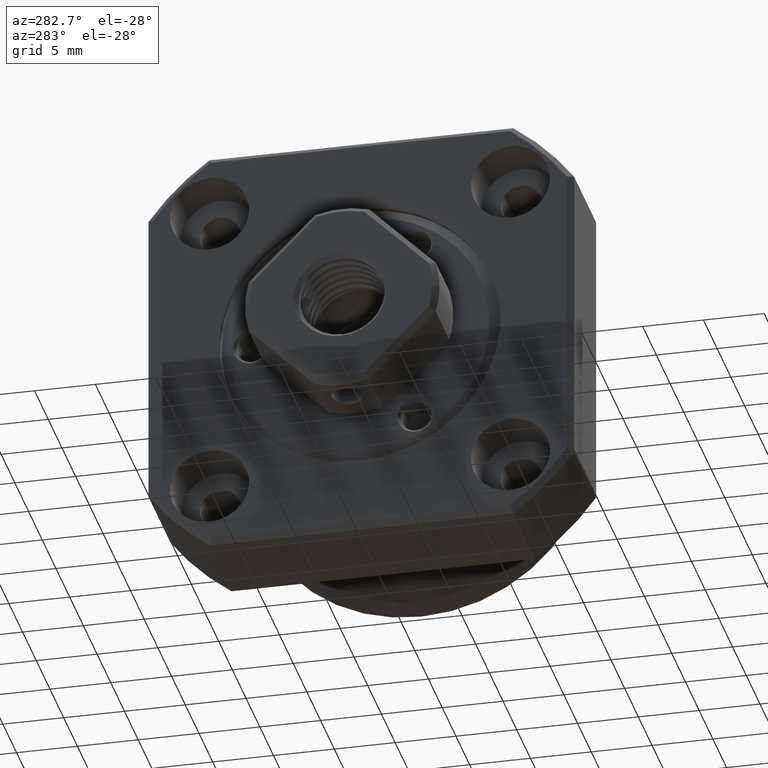
[diagram: clean part render]
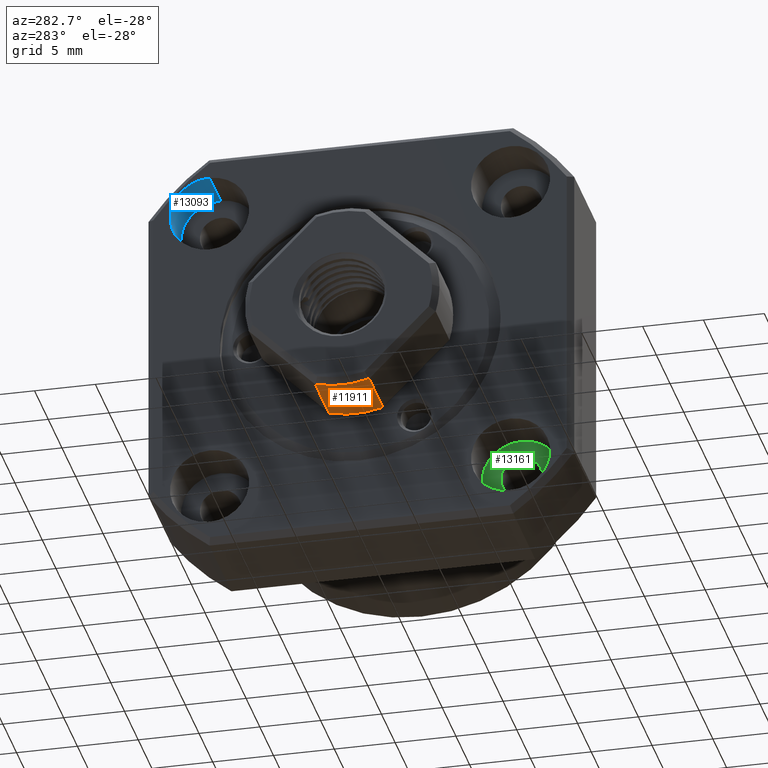
[diagram: same view with three faces highlighted in distinct colors, each labeled with its STEP entity id]
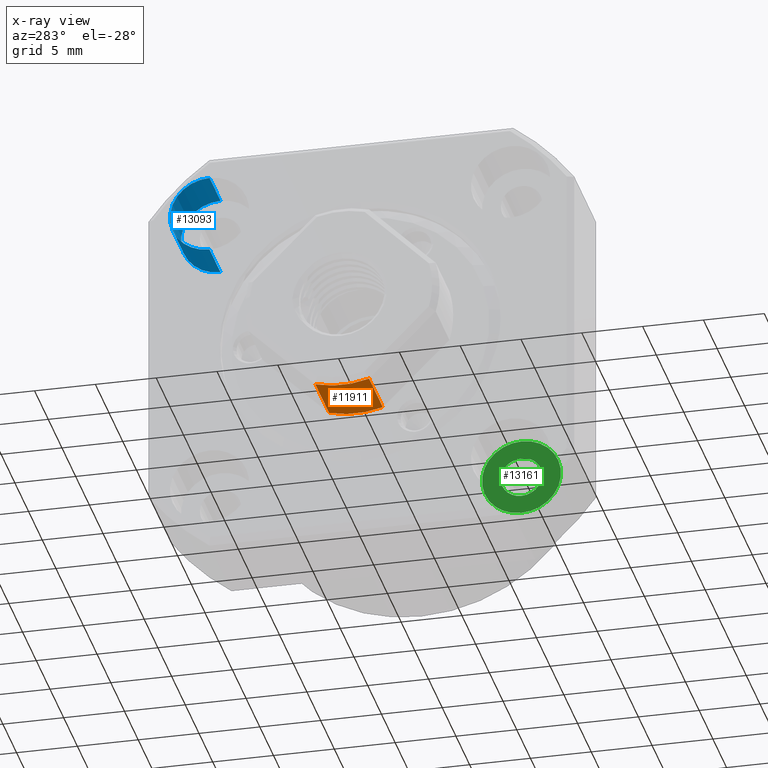
[diagram: x-ray of the same camera — body ghosted, the three highlighted faces saturated]
A machine part, auxiliary view with three faces highlighted in distinct colors.
The next image is the same camera in x-ray (body ghosted, the three faces saturated) — at least one of them is partly hidden behind the body in this view.
Their STEP definitions:

[orange] entity #11911 — the highlighted cylindrical surface (partial cylindrical patch) has radius 8 mm, axis along (1, 0, 0).
#11348 = EDGE_CURVE ( 'NONE', #11351, #11353, #37126, .T. ) ;
#11351 = VERTEX_POINT ( 'NONE', #37115 ) ;
#11353 = VERTEX_POINT ( 'NONE', #37106 ) ;
#11691 = EDGE_CURVE ( 'NONE', #11353, #11351, #38114, .T. ) ;
#11772 = EDGE_LOOP ( 'NONE', ( #11774, #11874, #11878, #11884 ) ) ;
#11774 = ORIENTED_EDGE ( 'NONE', *, *, #11777, .F. ) ;
#11777 = EDGE_CURVE ( 'NONE', #11779, #11780, #38370, .T. ) ;
#11779 = VERTEX_POINT ( 'NONE', #38364 ) ;
#11780 = VERTEX_POINT ( 'NONE', #38362 ) ;
#11874 = ORIENTED_EDGE ( 'NONE', *, *, #11875, .T. ) ;
#11875 = EDGE_CURVE ( 'NONE', #11779, #11876, #38572, .T. ) ;
#11876 = VERTEX_POINT ( 'NONE', #38567 ) ;
#11878 = ORIENTED_EDGE ( 'NONE', *, *, #11880, .F. ) ;
#11880 = EDGE_CURVE ( 'NONE', #11883, #11876, #38566, .T. ) ;
#11883 = VERTEX_POINT ( 'NONE', #38555 ) ;
#11884 = ORIENTED_EDGE ( 'NONE', *, *, #11885, .T. ) ;
#11885 = EDGE_CURVE ( 'NONE', #11883, #11780, #38557, .T. ) ;
#11911 = ADVANCED_FACE ( 'NONE', ( #38614, #38613 ), #38612, .T. ) ;
#11912 = EDGE_LOOP ( 'NONE', ( #11913, #11914 ) ) ;
#11913 = ORIENTED_EDGE ( 'NONE', *, *, #11691, .T. ) ;
#11914 = ORIENTED_EDGE ( 'NONE', *, *, #11348, .T. ) ;
#37081 = CARTESIAN_POINT ( 'NONE',  ( -3.461667801097382500, -0.8003058557343190000, -7.960778504280384900 ) ) ;
#37083 = CARTESIAN_POINT ( 'NONE',  ( -3.701090860489840900, -1.039407237230781700, -7.933102574158962900 ) ) ;
#37084 = CARTESIAN_POINT ( 'NONE',  ( -3.845367789046851400, -1.135965316673869500, -7.919212100649898100 ) ) ;
#37086 = CARTESIAN_POINT ( 'NONE',  ( -4.159824817562184600, -1.266191682786128600, -7.899436443076744800 ) ) ;
#37088 = CARTESIAN_POINT ( 'NONE',  ( -4.329016082523577500, -1.300106017611960300, -7.893650888819941300 ) ) ;
#37090 = CARTESIAN_POINT ( 'NONE',  ( -4.672592250346003300, -1.299893484939021100, -7.893685890597104100 ) ) ;
#37091 = CARTESIAN_POINT ( 'NONE',  ( -4.841432327052777000, -1.265906784306035200, -7.899485092780425400 ) ) ;
#37093 = CARTESIAN_POINT ( 'NONE',  ( -5.077700332516450900, -1.167705584014042900, -7.914389417287058100 ) ) ;
#37095 = CARTESIAN_POINT ( 'NONE',  ( -5.152259069562968600, -1.127715911799510100, -7.920260017787667200 ) ) ;
#37097 = CARTESIAN_POINT ( 'NONE',  ( -5.293176255057969300, -1.033468190108028700, -7.933108181988104400 ) ) ;
#37098 = CARTESIAN_POINT ( 'NONE',  ( -5.359946436668760600, -0.9786064420686287900, -7.940149318801784000 ) ) ;
#37100 = CARTESIAN_POINT ( 'NONE',  ( -5.539563308251745300, -0.7987627293050289000, -7.960938713215925900 ) ) ;
#37102 = CARTESIAN_POINT ( 'NONE',  ( -5.636186486837067000, -0.6540376964923748600, -7.974760977249912000 ) ) ;
#37104 = CARTESIAN_POINT ( 'NONE',  ( -5.765834693990137300, -0.3410975942382240000, -7.994262341448763500 ) ) ;
#37106 = CARTESIAN_POINT ( 'NONE',  ( -3.200000000000004200, -6.008997269984488000E-015, -7.999999999999992900 ) ) ;
#37115 = CARTESIAN_POINT ( 'NONE',  ( -5.799999999999985600, -6.392136178582352700E-015, -7.999999999999992900 ) ) ;
#37120 = CARTESIAN_POINT ( 'NONE',  ( -5.799999999999986500, -0.1697939913891517700, -7.999999999999992900 ) ) ;
#37121 = CARTESIAN_POINT ( 'NONE',  ( -5.799999999999985600, -6.392136178582352700E-015, -7.999999999999992900 ) ) ;
#37126 = B_SPLINE_CURVE_WITH_KNOTS ( 'NONE', 3,
 ( #37121, #37120, #37104, #37102, #37100, #37098, #37097, #37095, #37093, #37091, #37090, #37088, #37086, #37084, #37083, #37081, #37184, #37183, #37182, #37180 ),
 .UNSPECIFIED., .F., .F.,
 ( 4, 2, 2, 2, 2, 2, 2, 2, 2, 4 ),
 ( 0.004071145708490775600, 0.004579912519083637400, 0.005088679329676499200, 0.005343062734972930600, 0.005597446140269361100, 0.006106212950862222000, 0.006614979761455084700, 0.007123746572047946600, 0.007632513382640810200, 0.008141280193233672900 ),
 .UNSPECIFIED. ) ;
#37180 = CARTESIAN_POINT ( 'NONE',  ( -3.200000000000004200, -6.008997269984488000E-015, -7.999999999999992900 ) ) ;
#37182 = CARTESIAN_POINT ( 'NONE',  ( -3.200000000000005100, -0.1720524413163924700, -7.999999999999996400 ) ) ;
#37183 = CARTESIAN_POINT ( 'NONE',  ( -3.234676926419282500, -0.3429515518487777400, -7.994179833223617100 ) ) ;
#37184 = CARTESIAN_POINT ( 'NONE',  ( -3.364704594874876600, -0.6555628044306818200, -7.974632554687498300 ) ) ;
#38054 = CARTESIAN_POINT ( 'NONE',  ( -5.799999999999985600, -6.392136178582352700E-015, -7.999999999999992900 ) ) ;
#38055 = CARTESIAN_POINT ( 'NONE',  ( -5.799999999999982900, 0.08491808832884872900, -7.999999999999988500 ) ) ;
#38057 = CARTESIAN_POINT ( 'NONE',  ( -5.791487258236450100, 0.1711822549332018800, -7.998604160737757600 ) ) ;
#38059 = CARTESIAN_POINT ( 'NONE',  ( -5.758147705237028000, 0.3380932628697551100, -7.993288736820251600 ) ) ;
#38061 = CARTESIAN_POINT ( 'NONE',  ( -5.733519039561072900, 0.4191401066810691000, -7.989401141627563900 ) ) ;
#38062 = CARTESIAN_POINT ( 'NONE',  ( -5.635723700040108100, 0.6550742531350938200, -7.974692084736180000 ) ) ;
#38064 = CARTESIAN_POINT ( 'NONE',  ( -5.540307894600859500, 0.7981736182770973200, -7.961015976866030500 ) ) ;
#38066 = CARTESIAN_POINT ( 'NONE',  ( -5.298140264355979800, 1.040333484463608100, -7.933004648299001500 ) ) ;
#38068 = CARTESIAN_POINT ( 'NONE',  ( -5.155072640293982800, 1.135768088918337700, -7.919241713428498900 ) ) ;
#38069 = CARTESIAN_POINT ( 'NONE',  ( -4.918713933445575400, 1.233673770048342400, -7.904374652429659400 ) ) ;
#38071 = CARTESIAN_POINT ( 'NONE',  ( -4.837605555244474300, 1.258275967073795500, -7.900444634969733900 ) ) ;
#38073 = CARTESIAN_POINT ( 'NONE',  ( -4.670760845328608500, 1.291540419015249500, -7.895074868903235700 ) ) ;
#38075 = CARTESIAN_POINT ( 'NONE',  ( -4.584455935574023800, 1.300032049146676400, -7.893663070606225900 ) ) ;
#38076 = CARTESIAN_POINT ( 'NONE',  ( -4.329612463101255100, 1.299935622528462400, -7.893678951004153200 ) ) ;
#38078 = CARTESIAN_POINT ( 'NONE',  ( -4.158319893690214800, 1.265669370120529300, -7.899518059349834000 ) ) ;
#38080 = CARTESIAN_POINT ( 'NONE',  ( -3.845547090233068000, 1.135938219449791800, -7.919213905814686400 ) ) ;
#38082 = CARTESIAN_POINT ( 'NONE',  ( -3.700712429391637600, 1.039136427077242300, -7.933140198277266500 ) ) ;
#38083 = CARTESIAN_POINT ( 'NONE',  ( -3.521094192280495200, 0.8595985709998439400, -7.953912230885838300 ) ) ;
#38085 = CARTESIAN_POINT ( 'NONE',  ( -3.466269453575118000, 0.7928508597786392300, -7.960930471039993100 ) ) ;
#38087 = CARTESIAN_POINT ( 'NONE',  ( -3.371911704852643200, 0.6516349643896842700, -7.973731768988075800 ) ) ;
#38088 = CARTESIAN_POINT ( 'NONE',  ( -3.331962638853377200, 0.5770158506110889500, -7.979553171620577400 ) ) ;
#38104 = CARTESIAN_POINT ( 'NONE',  ( -3.233987133413659600, 0.3409482324357109300, -7.994286631407760500 ) ) ;
#38106 = CARTESIAN_POINT ( 'NONE',  ( -3.200000000000004600, 0.1720951876961843200, -7.999999999999991100 ) ) ;
#38108 = CARTESIAN_POINT ( 'NONE',  ( -3.200000000000004200, -6.008997269984488000E-015, -7.999999999999992900 ) ) ;
#38114 = B_SPLINE_CURVE_WITH_KNOTS ( 'NONE', 3,
 ( #38108, #38106, #38104, #38088, #38087, #38085, #38083, #38082, #38080, #38078, #38076, #38075, #38073, #38071, #38069, #38068, #38066, #38064, #38062, #38061, #38059, #38057, #38055, #38054 ),
 .UNSPECIFIED., .F., .F.,
 ( 4, 2, 2, 2, 2, 2, 2, 2, 2, 2, 2, 4 ),
 ( 5.377974324027086300E-020, 0.0005088932135613448900, 0.0007633398203420173300, 0.001017786427122689800, 0.001526679640684034700, 0.002035572854245379500, 0.002290019461026053600, 0.002544466067806727200, 0.003053359281368077100, 0.003562252494929427000, 0.003816699101710101100, 0.004071145708490775600 ),
 .UNSPECIFIED. ) ;
#38362 = CARTESIAN_POINT ( 'NONE',  ( -1.499999999999987600, -2.211134680780132200, -7.688360255831618400 ) ) ;
#38364 = CARTESIAN_POINT ( 'NONE',  ( -6.499999999999992000, -2.211134680780132200, -7.688360255831618400 ) ) ;
#38365 = DIRECTION ( 'NONE',  ( 1.000000000000000000, 2.465190328815661900E-032, 0.0000000000000000000 ) ) ;
#38367 = VECTOR ( 'NONE', #38365, 1000.000000000000000 ) ;
#38369 = CARTESIAN_POINT ( 'NONE',  ( 34.67746478873240100, -2.211134680780132200, -7.688360255831618400 ) ) ;
#38370 = LINE ( 'NONE', #38369, #38367 ) ;
#38555 = CARTESIAN_POINT ( 'NONE',  ( -1.499999999999987600, 2.211134680779809300, -7.688360255831711700 ) ) ;
#38557 = CIRCLE ( 'NONE', #38650, 7.999999999999992900 ) ;
#38561 = DIRECTION ( 'NONE',  ( -1.000000000000000000, -2.465190328815661900E-032, -0.0000000000000000000 ) ) ;
#38562 = VECTOR ( 'NONE', #38561, 1000.000000000000000 ) ;
#38564 = CARTESIAN_POINT ( 'NONE',  ( 34.67746478873240100, 2.211134680779809300, -7.688360255831711700 ) ) ;
#38566 = LINE ( 'NONE', #38564, #38562 ) ;
#38567 = CARTESIAN_POINT ( 'NONE',  ( -6.499999999999992000, 2.211134680779809300, -7.688360255831711700 ) ) ;
#38568 = DIRECTION ( 'NONE',  ( 0.0000000000000000000, -1.000000000000000000, -1.873015952737623100E-016 ) ) ;
#38569 = DIRECTION ( 'NONE',  ( 1.000000000000000000, 1.281898970984144200E-030, 2.408481735558279300E-046 ) ) ;
#38570 = CARTESIAN_POINT ( 'NONE',  ( -6.499999999999992000, 0.0000000000000000000, -7.861982066792904200E-032 ) ) ;
#38571 = AXIS2_PLACEMENT_3D ( 'NONE', #38570, #38569, #38568 ) ;
#38572 = CIRCLE ( 'NONE', #38571, 7.999999999999992900 ) ;
#38605 = DIRECTION ( 'NONE',  ( 1.000000000000000000, 2.465190328815661900E-032, 0.0000000000000000000 ) ) ;
#38608 = CARTESIAN_POINT ( 'NONE',  ( 34.67746478873240100, 1.540743955509788700E-030, -7.861982066792886700E-032 ) ) ;
#38609 = AXIS2_PLACEMENT_3D ( 'NONE', #38608, #38605, #38713 ) ;
#38612 = CYLINDRICAL_SURFACE ( 'NONE', #38609, 7.999999999999992900 ) ;
#38613 = FACE_OUTER_BOUND ( 'NONE', #11772, .T. ) ;
#38614 = FACE_BOUND ( 'NONE', #11912, .T. ) ;
#38647 = DIRECTION ( 'NONE',  ( 0.0000000000000000000, 1.000000000000000000, 1.873015952737623100E-016 ) ) ;
#38648 = DIRECTION ( 'NONE',  ( -1.000000000000000000, 1.306550874272300800E-030, 2.463219956820967500E-046 ) ) ;
#38649 = CARTESIAN_POINT ( 'NONE',  ( -1.499999999999987600, 1.540743955509788700E-030, -7.861982066792904200E-032 ) ) ;
#38650 = AXIS2_PLACEMENT_3D ( 'NONE', #38649, #38648, #38647 ) ;
#38713 = DIRECTION ( 'NONE',  ( 0.0000000000000000000, -1.000000000000000000, -1.873015952737623100E-016 ) ) ;

[blue] entity #13093 — the highlighted cylindrical surface (partial cylindrical patch) has radius 3.25 mm, axis along (-1, -0, -0).
#12750 = VERTEX_POINT ( 'NONE', #48544 ) ;
#12751 = VERTEX_POINT ( 'NONE', #48543 ) ;
#12753 = EDGE_CURVE ( 'NONE', #12750, #12755, #48542, .T. ) ;
#12755 = VERTEX_POINT ( 'NONE', #48538 ) ;
#12761 = VERTEX_POINT ( 'NONE', #48593 ) ;
#12763 = EDGE_CURVE ( 'NONE', #12751, #12761, #48592, .T. ) ;
#13087 = EDGE_CURVE ( 'NONE', #12751, #12750, #48915, .T. ) ;
#13093 = ADVANCED_FACE ( 'NONE', ( #48908 ), #48907, .F. ) ;
#13194 = EDGE_LOOP ( 'NONE', ( #13196, #13197, #13199, #13201 ) ) ;
#13196 = ORIENTED_EDGE ( 'NONE', *, *, #12753, .F. ) ;
#13197 = ORIENTED_EDGE ( 'NONE', *, *, #13087, .F. ) ;
#13199 = ORIENTED_EDGE ( 'NONE', *, *, #12763, .T. ) ;
#13201 = ORIENTED_EDGE ( 'NONE', *, *, #13567, .T. ) ;
#13567 = EDGE_CURVE ( 'NONE', #12761, #12755, #49413, .T. ) ;
#48538 = CARTESIAN_POINT ( 'NONE',  ( 0.0000000000000000000, 12.37436867076460000, 9.124368670764566100 ) ) ;
#48539 = DIRECTION ( 'NONE',  ( -1.000000000000000000, -0.0000000000000000000, -0.0000000000000000000 ) ) ;
#48540 = VECTOR ( 'NONE', #48539, 1000.000000000000000 ) ;
#48541 = CARTESIAN_POINT ( 'NONE',  ( 0.0000000000000000000, 12.37436867076460000, 9.124368670764566100 ) ) ;
#48542 = LINE ( 'NONE', #48541, #48540 ) ;
#48543 = CARTESIAN_POINT ( 'NONE',  ( 4.000000000000000000, 12.37436867076460000, 15.62436867076456400 ) ) ;
#48544 = CARTESIAN_POINT ( 'NONE',  ( 4.000000000000000000, 12.37436867076460000, 9.124368670764566100 ) ) ;
#48589 = DIRECTION ( 'NONE',  ( -1.000000000000000000, -0.0000000000000000000, -0.0000000000000000000 ) ) ;
#48590 = VECTOR ( 'NONE', #48589, 1000.000000000000000 ) ;
#48591 = CARTESIAN_POINT ( 'NONE',  ( 0.0000000000000000000, 12.37436867076460000, 15.62436867076456400 ) ) ;
#48592 = LINE ( 'NONE', #48591, #48590 ) ;
#48593 = CARTESIAN_POINT ( 'NONE',  ( 0.0000000000000000000, 12.37436867076460000, 15.62436867076456400 ) ) ;
#48903 = DIRECTION ( 'NONE',  ( 0.0000000000000000000, 0.0000000000000000000, 1.000000000000000000 ) ) ;
#48904 = DIRECTION ( 'NONE',  ( -1.000000000000000000, -0.0000000000000000000, -0.0000000000000000000 ) ) ;
#48905 = CARTESIAN_POINT ( 'NONE',  ( 0.0000000000000000000, 12.37436867076460000, 12.37436867076456600 ) ) ;
#48906 = AXIS2_PLACEMENT_3D ( 'NONE', #48905, #48904, #48903 ) ;
#48907 = CYLINDRICAL_SURFACE ( 'NONE', #48906, 3.249999999999999600 ) ;
#48908 = FACE_OUTER_BOUND ( 'NONE', #13194, .T. ) ;
#48909 = DIRECTION ( 'NONE',  ( 0.0000000000000000000, 0.0000000000000000000, 1.000000000000000000 ) ) ;
#48910 = DIRECTION ( 'NONE',  ( -1.000000000000000000, -0.0000000000000000000, -0.0000000000000000000 ) ) ;
#48911 = CARTESIAN_POINT ( 'NONE',  ( 4.000000000000000000, 12.37436867076460000, 12.37436867076456600 ) ) ;
#48912 = AXIS2_PLACEMENT_3D ( 'NONE', #48911, #48910, #48909 ) ;
#48915 = CIRCLE ( 'NONE', #48912, 3.249999999999999600 ) ;
#49409 = DIRECTION ( 'NONE',  ( 0.0000000000000000000, 0.0000000000000000000, 1.000000000000000000 ) ) ;
#49410 = DIRECTION ( 'NONE',  ( -1.000000000000000000, -0.0000000000000000000, -0.0000000000000000000 ) ) ;
#49411 = CARTESIAN_POINT ( 'NONE',  ( 0.0000000000000000000, 12.37436867076460000, 12.37436867076456600 ) ) ;
#49412 = AXIS2_PLACEMENT_3D ( 'NONE', #49411, #49410, #49409 ) ;
#49413 = CIRCLE ( 'NONE', #49412, 3.249999999999999600 ) ;

[green] entity #13161 — the highlighted planar face has unit normal (1, 0, 0).
#12516 = EDGE_CURVE ( 'NONE', #12517, #12518, #48269, .T. ) ;
#12517 = VERTEX_POINT ( 'NONE', #48264 ) ;
#12518 = VERTEX_POINT ( 'NONE', #48263 ) ;
#12534 = VERTEX_POINT ( 'NONE', #48311 ) ;
#12538 = EDGE_CURVE ( 'NONE', #12534, #12540, #48310, .T. ) ;
#12540 = VERTEX_POINT ( 'NONE', #48305 ) ;
#13158 = EDGE_CURVE ( 'NONE', #12540, #12534, #48927, .T. ) ;
#13161 = ADVANCED_FACE ( 'NONE', ( #48919, #48918 ), #48916, .F. ) ;
#13164 = EDGE_LOOP ( 'NONE', ( #13165, #13261 ) ) ;
#13165 = ORIENTED_EDGE ( 'NONE', *, *, #13158, .F. ) ;
#13261 = ORIENTED_EDGE ( 'NONE', *, *, #12538, .F. ) ;
#13263 = EDGE_LOOP ( 'NONE', ( #13265, #13269 ) ) ;
#13265 = ORIENTED_EDGE ( 'NONE', *, *, #13267, .T. ) ;
#13267 = EDGE_CURVE ( 'NONE', #12518, #12517, #49037, .T. ) ;
#13269 = ORIENTED_EDGE ( 'NONE', *, *, #12516, .T. ) ;
#48263 = CARTESIAN_POINT ( 'NONE',  ( 4.000000000000000000, -12.37436867076460000, -9.124368670764566100 ) ) ;
#48264 = CARTESIAN_POINT ( 'NONE',  ( 4.000000000000000000, -12.37436867076460000, -15.62436867076456400 ) ) ;
#48265 = DIRECTION ( 'NONE',  ( 0.0000000000000000000, 0.0000000000000000000, 1.000000000000000000 ) ) ;
#48266 = DIRECTION ( 'NONE',  ( -1.000000000000000000, -0.0000000000000000000, -0.0000000000000000000 ) ) ;
#48267 = CARTESIAN_POINT ( 'NONE',  ( 4.000000000000000000, -12.37436867076460000, -12.37436867076456600 ) ) ;
#48268 = AXIS2_PLACEMENT_3D ( 'NONE', #48267, #48266, #48265 ) ;
#48269 = CIRCLE ( 'NONE', #48268, 3.249999999999999600 ) ;
#48305 = CARTESIAN_POINT ( 'NONE',  ( 4.000000000000000000, -12.37436867076460000, -10.67436867076456300 ) ) ;
#48306 = DIRECTION ( 'NONE',  ( 0.0000000000000000000, 0.0000000000000000000, 1.000000000000000000 ) ) ;
#48307 = DIRECTION ( 'NONE',  ( -1.000000000000000000, -0.0000000000000000000, -0.0000000000000000000 ) ) ;
#48308 = CARTESIAN_POINT ( 'NONE',  ( 4.000000000000000000, -12.37436867076460000, -12.37436867076456600 ) ) ;
#48309 = AXIS2_PLACEMENT_3D ( 'NONE', #48308, #48307, #48306 ) ;
#48310 = CIRCLE ( 'NONE', #48309, 1.700000000000002000 ) ;
#48311 = CARTESIAN_POINT ( 'NONE',  ( 4.000000000000000000, -12.37436867076460000, -14.07436867076456700 ) ) ;
#48916 = PLANE ( 'NONE',  #48917 ) ;
#48917 = AXIS2_PLACEMENT_3D ( 'NONE', #48978, #48977, #48976 ) ;
#48918 = FACE_OUTER_BOUND ( 'NONE', #13263, .T. ) ;
#48919 = FACE_BOUND ( 'NONE', #13164, .T. ) ;
#48920 = DIRECTION ( 'NONE',  ( 0.0000000000000000000, 0.0000000000000000000, 1.000000000000000000 ) ) ;
#48921 = DIRECTION ( 'NONE',  ( -1.000000000000000000, -0.0000000000000000000, -0.0000000000000000000 ) ) ;
#48922 = CARTESIAN_POINT ( 'NONE',  ( 4.000000000000000000, -12.37436867076460000, -12.37436867076456600 ) ) ;
#48923 = AXIS2_PLACEMENT_3D ( 'NONE', #48922, #48921, #48920 ) ;
#48927 = CIRCLE ( 'NONE', #48923, 1.700000000000002000 ) ;
#48976 = DIRECTION ( 'NONE',  ( 0.0000000000000000000, 0.0000000000000000000, -1.000000000000000000 ) ) ;
#48977 = DIRECTION ( 'NONE',  ( 1.000000000000000000, 0.0000000000000000000, 0.0000000000000000000 ) ) ;
#48978 = CARTESIAN_POINT ( 'NONE',  ( 4.000000000000000000, -10.67436867076459900, -12.37436867076456600 ) ) ;
#49032 = DIRECTION ( 'NONE',  ( 0.0000000000000000000, 0.0000000000000000000, 1.000000000000000000 ) ) ;
#49034 = DIRECTION ( 'NONE',  ( -1.000000000000000000, -0.0000000000000000000, -0.0000000000000000000 ) ) ;
#49035 = CARTESIAN_POINT ( 'NONE',  ( 4.000000000000000000, -12.37436867076460000, -12.37436867076456600 ) ) ;
#49036 = AXIS2_PLACEMENT_3D ( 'NONE', #49035, #49034, #49032 ) ;
#49037 = CIRCLE ( 'NONE', #49036, 3.249999999999999600 ) ;